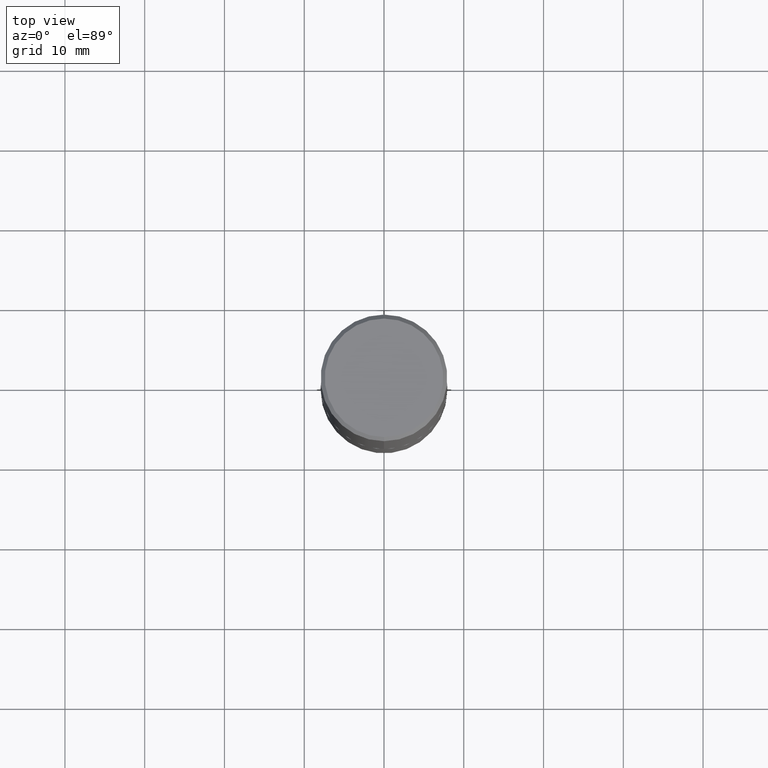
[diagram: clean part render]
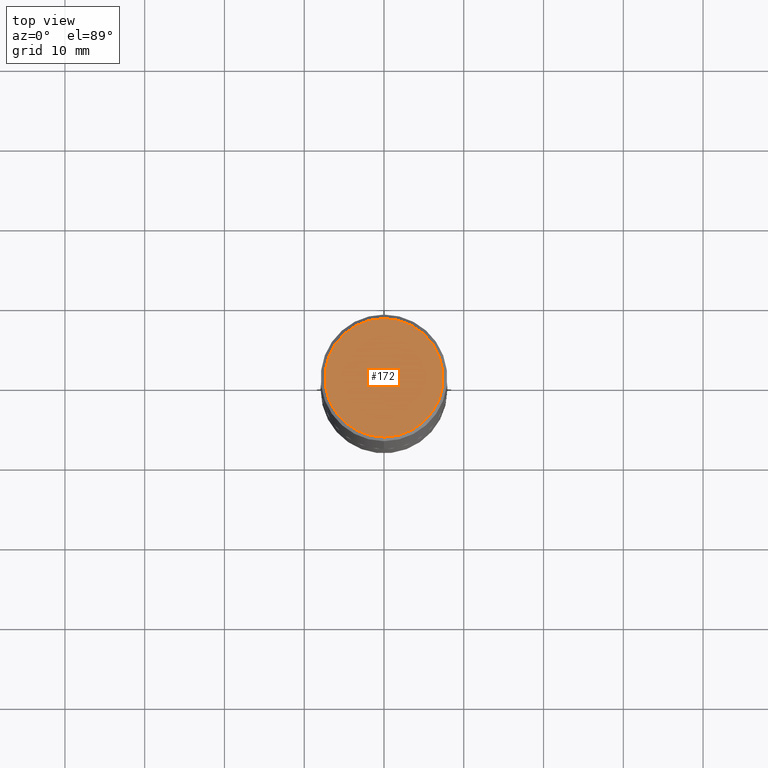
[diagram: same view with one face highlighted and labeled with its STEP entity id]
A machine part, top view. The second image highlights one B-rep face of the part: STEP entity #172.
In plain terms, the highlighted planar face has unit normal (0, -0, -1).
Its self-contained STEP definition (entity closure, byte-faithful):
#3 = AXIS2_PLACEMENT_3D ( 'NONE', #195, #126, #198 ) ;
#33 = CIRCLE ( 'NONE', #313, 0.2924999999999997047 ) ;
#47 = EDGE_CURVE ( 'NONE', #160, #142, #33, .T. ) ;
#51 = DIRECTION ( 'NONE',  ( -2.444155435168616212E-29, 3.493362160891238520E-15, 1.000000000000000000 ) ) ;
#57 = DIRECTION ( 'NONE',  ( -6.982962677686265133E-15, -1.000000000000000000, 3.493362160891238126E-15 ) ) ;
#97 = DIRECTION ( 'NONE',  ( -2.444155435168616212E-29, 3.493362160891238520E-15, 1.000000000000000000 ) ) ;
#104 = CIRCLE ( 'NONE', #188, 0.2924999999999997047 ) ;
#126 = DIRECTION ( 'NONE',  ( 2.444155435168616212E-29, -3.493362160891238126E-15, -1.000000000000000000 ) ) ;
#132 = CARTESIAN_POINT ( 'NONE',  ( 2.112346210000094260E-15, 0.2924999999999997047, -8.889344044185063951E-16 ) ) ;
#142 = VERTEX_POINT ( 'NONE', #132 ) ;
#160 = VERTEX_POINT ( 'NONE', #292 ) ;
#172 = ADVANCED_FACE ( 'NONE', ( #350 ), #409, .F. ) ;
#188 = AXIS2_PLACEMENT_3D ( 'NONE', #379, #97, #57 ) ;
#195 = CARTESIAN_POINT ( 'NONE',  ( 2.042516583223230567E-15, 0.2924999999999997047, -9.553714182395964653E-16 ) ) ;
#198 = DIRECTION ( 'NONE',  ( 6.982962677686265922E-15, 1.000000000000000000, -3.493362160891238126E-15 ) ) ;
#226 = EDGE_CURVE ( 'NONE', #142, #160, #104, .T. ) ;
#239 = EDGE_LOOP ( 'NONE', ( #396, #391 ) ) ;
#254 = CARTESIAN_POINT ( 'NONE',  ( -3.247647768543791356E-45, 4.641771003304080589E-31, 1.328740276421799924E-16 ) ) ;
#292 = CARTESIAN_POINT ( 'NONE',  ( -2.075300644325886310E-15, -0.2924999999999997047, 1.154682459702866479E-15 ) ) ;
#313 = AXIS2_PLACEMENT_3D ( 'NONE', #254, #51, #402 ) ;
#350 = FACE_OUTER_BOUND ( 'NONE', #239, .T. ) ;
#379 = CARTESIAN_POINT ( 'NONE',  ( -3.247647768543791356E-45, 4.641771003304080589E-31, 1.328740276421799924E-16 ) ) ;
#391 = ORIENTED_EDGE ( 'NONE', *, *, #47, .T. ) ;
#396 = ORIENTED_EDGE ( 'NONE', *, *, #226, .T. ) ;
#402 = DIRECTION ( 'NONE',  ( -6.982962677686265133E-15, -1.000000000000000000, 3.493362160891238126E-15 ) ) ;
#409 = PLANE ( 'NONE',  #3 ) ;